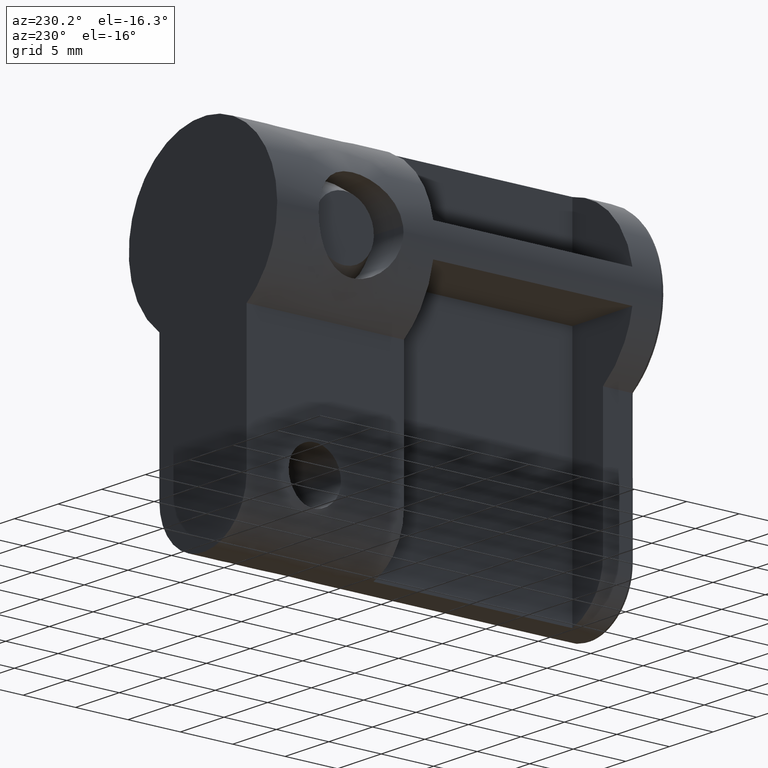
[diagram: clean part render]
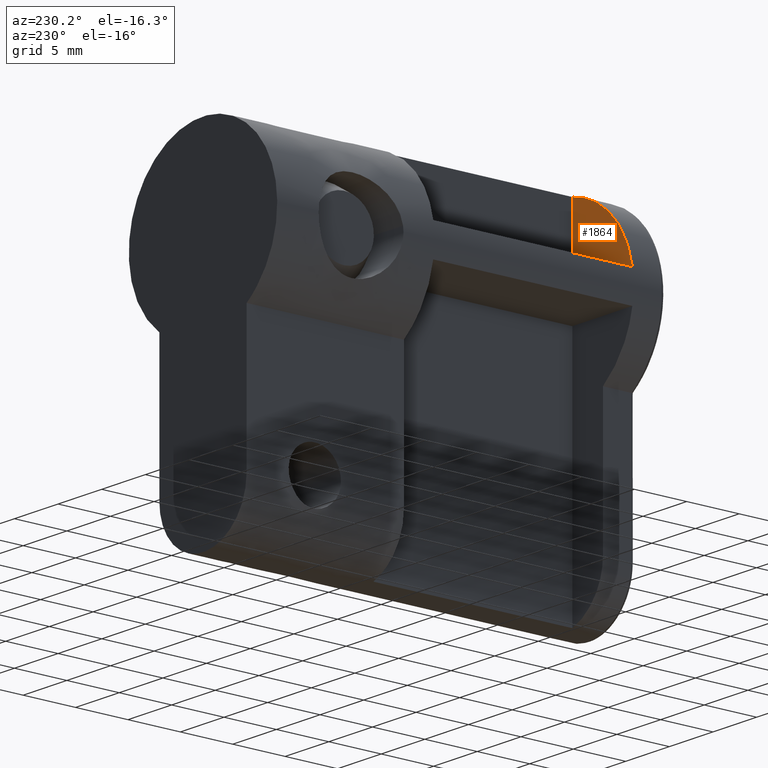
[diagram: same view with one face highlighted and labeled with its STEP entity id]
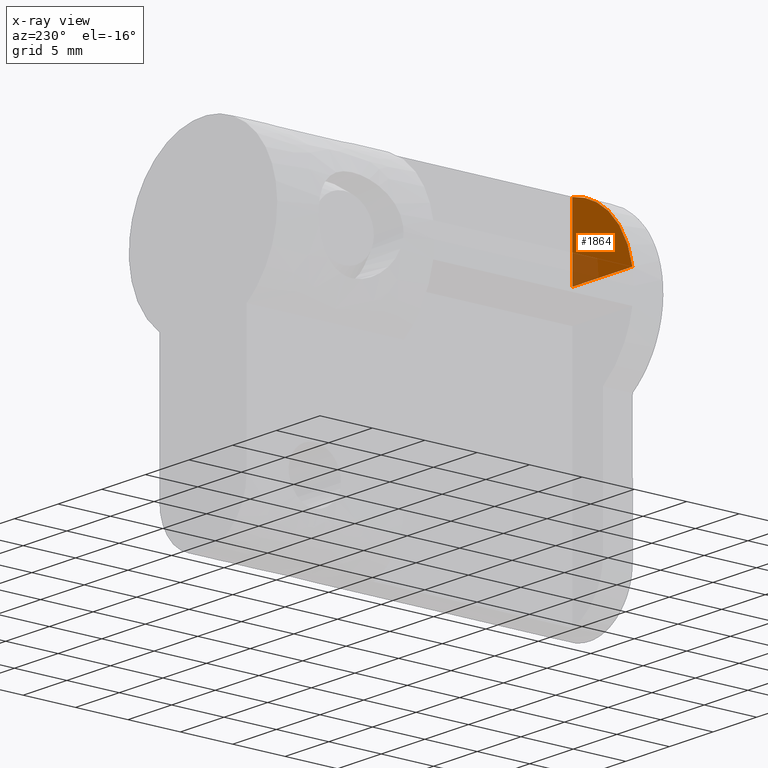
[diagram: x-ray of the same camera — body ghosted, the highlighted face saturated]
A machine part, auxiliary view. The second image highlights one B-rep face of the part: STEP entity #1864.
The next image is the same camera in x-ray: the body ghosted, the highlighted face saturated — about 18% of this face is hidden behind the body in this view.
In plain terms, the highlighted face is a freeform B-spline surface patch.
Its self-contained STEP definition (entity closure, byte-faithful):
#1769=CARTESIAN_POINT('',(-1.500000071246065,3.000000142405610,1.500000071246205));
#1770=VERTEX_POINT('',#1769);
#1776=CARTESIAN_POINT('',(-1.500000071245845,3.000000142405645,8.366600662733010));
#1777=VERTEX_POINT('',#1776);
#1778=CARTESIAN_POINT('',(-1.500000071245845,3.000000142405645,8.366600662733010));
#1779=CARTESIAN_POINT('',(-1.500000071246065,3.000000142405610,1.500000071246205));
#1780=QUASI_UNIFORM_CURVE('',1,(#1778,#1779),.UNSPECIFIED.,.F.,.U.);
#1781=EDGE_CURVE('',#1777,#1770,#1780,.T.);
#1825=CARTESIAN_POINT('',(-8.366600662732980,3.000000142405615,1.500000071246205));
#1826=VERTEX_POINT('',#1825);
#1832=CARTESIAN_POINT('',(-1.500000071246065,3.000000142405610,1.500000071246205));
#1833=CARTESIAN_POINT('',(-8.366600662732980,3.000000142405615,1.500000071246205));
#1834=QUASI_UNIFORM_CURVE('',1,(#1832,#1833),.UNSPECIFIED.,.F.,.U.);
#1835=EDGE_CURVE('',#1770,#1826,#1834,.T.);
#1842=CARTESIAN_POINT('',(-8.709587735721359,3.000000142405370,8.709587735721375));
#1843=CARTESIAN_POINT('',(-8.709587735721359,3.000000142405370,1.157013182434423));
#1844=CARTESIAN_POINT('',(-1.157013182434047,3.000000142405370,8.709587735721375));
#1845=CARTESIAN_POINT('',(-1.157013182434047,3.000000142405370,1.157013182434423));
#1846=B_SPLINE_SURFACE_WITH_KNOTS('',1,1,((#1842,#1844),(#1843,#1845)),.UNSPECIFIED.,.F.,.F.,.U.,(2,2),(2,2),(0.0,7.552574553286953),(0.0,7.552574553287313),.UNSPECIFIED.);
#1847=CARTESIAN_POINT('',(-8.366600662732980,3.000000142405615,1.500000071246205));
#1848=CARTESIAN_POINT('',(-7.322684763614985,3.000000142405535,7.322684763615295));
#1849=CARTESIAN_POINT('',(-1.500000071245845,3.000000142405645,8.366600662733010));
#1857=(BOUNDED_CURVE()B_SPLINE_CURVE(2,(#1847,#1848,#1849),.UNSPECIFIED.,.F.,.U.)CURVE()GEOMETRIC_REPRESENTATION_ITEM()QUASI_UNIFORM_CURVE()RATIONAL_B_SPLINE_CURVE((1.0,0.820792935868158,1.0))REPRESENTATION_ITEM(''));
#1858=EDGE_CURVE('',#1826,#1777,#1857,.T.);
#1859=ORIENTED_EDGE('',*,*,#1858,.T.);
#1860=ORIENTED_EDGE('',*,*,#1781,.T.);
#1861=ORIENTED_EDGE('',*,*,#1835,.T.);
#1862=EDGE_LOOP('',(#1859,#1860,#1861));
#1863=FACE_OUTER_BOUND('',#1862,.T.);
#1864=ADVANCED_FACE('',(#1863),#1846,.F.);